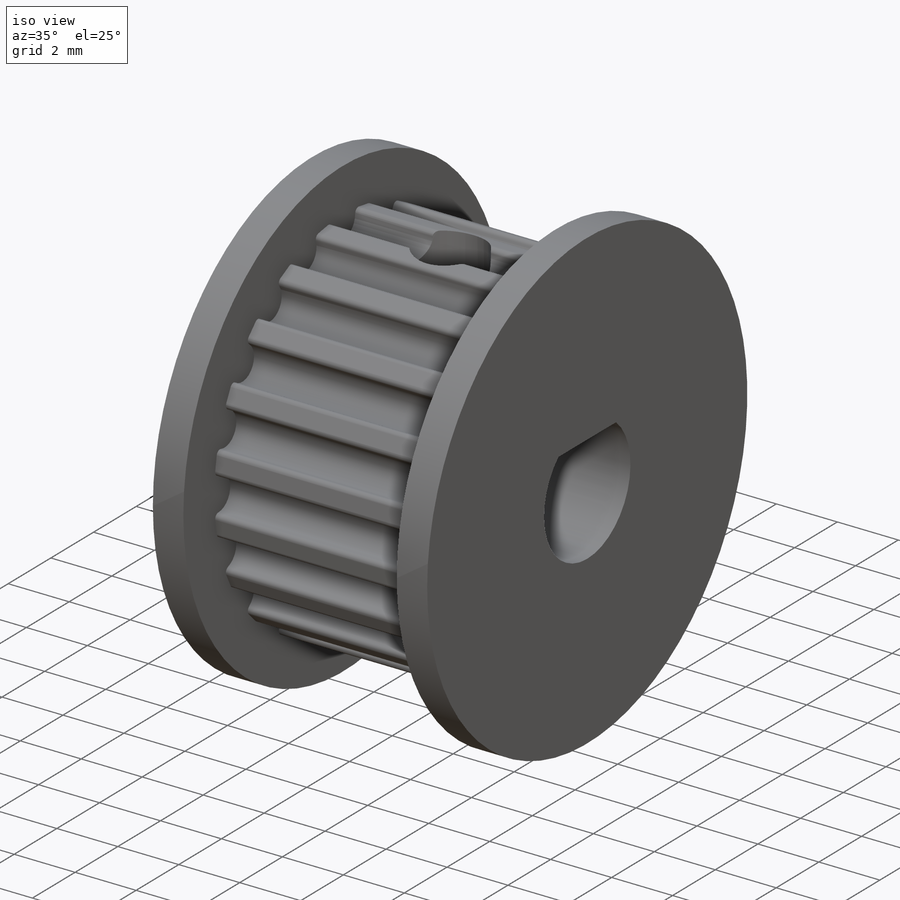
[diagram: iso view]
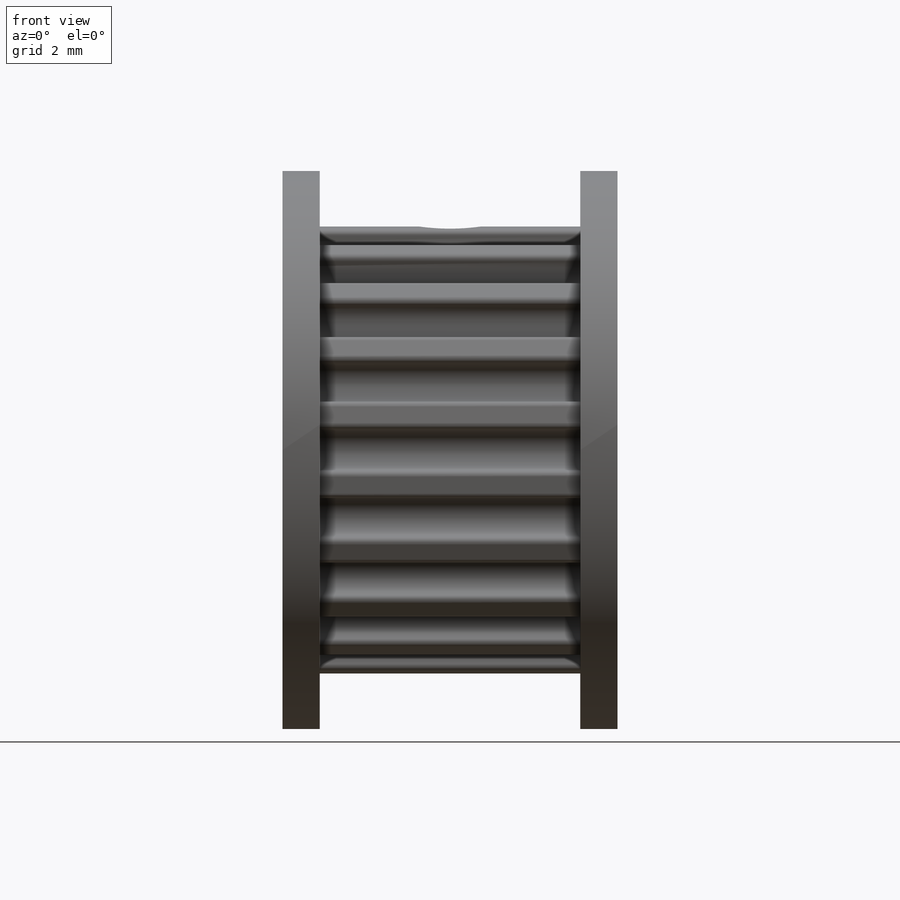
[diagram: front view]
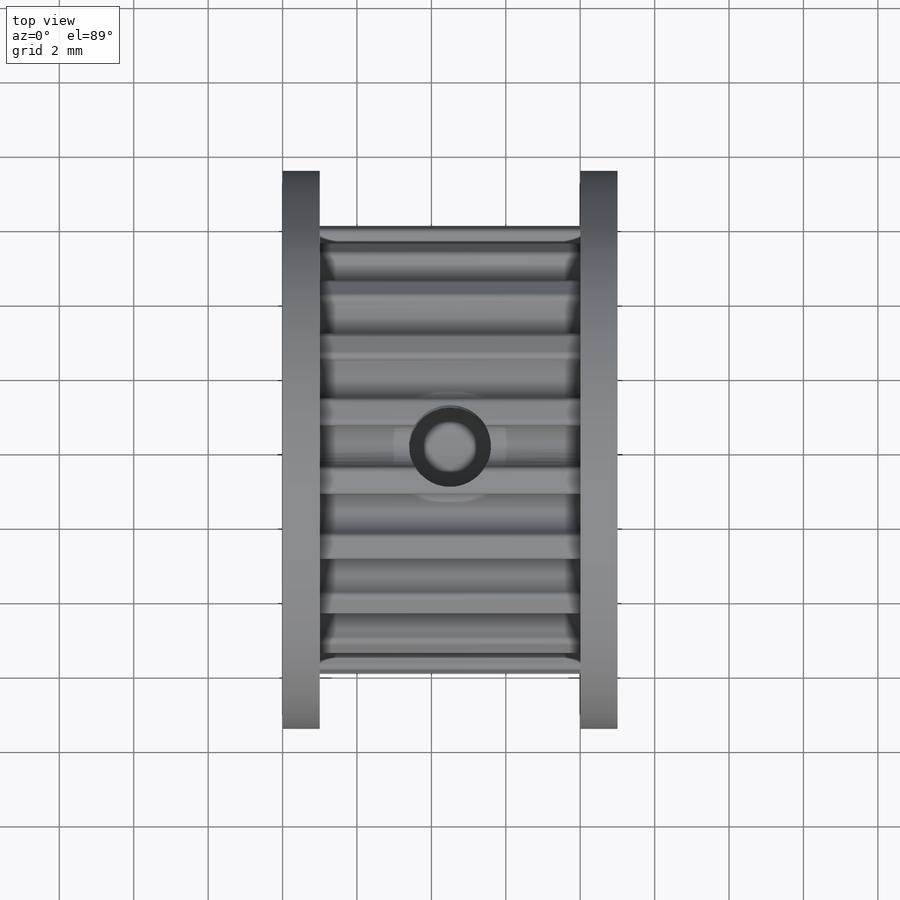
[diagram: top view]
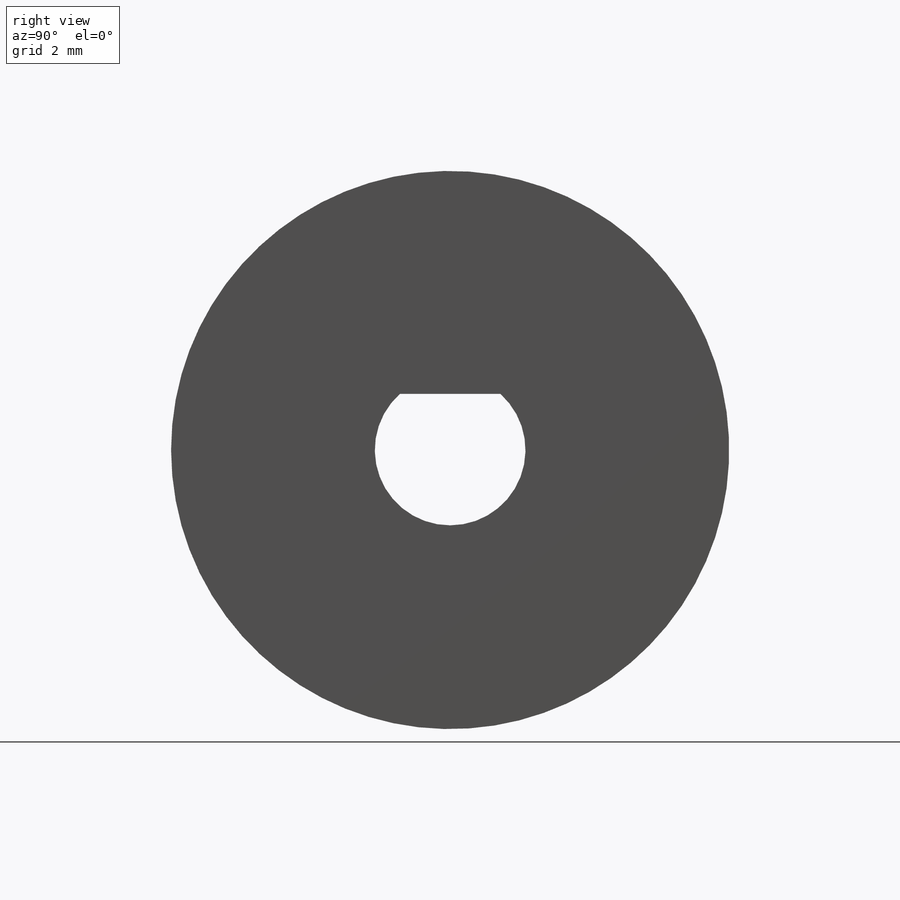
[diagram: right view]
SOLIDWORKS PART (.sldprt)
format: sldprt  version: not decoded by parser v0  size: 473,600 bytes
history: native  units: mm
features: sketch x5, plane x3, cut_extrude x2, material x1, revolve x1, fillet x1, hole x1 (+10 scaffold rows collapsed)
feature tree (24):
  scaffold x10  (default folders/planes/origin — collapsed)
  material  "Alloy Steel"
  plane  "Сверху"
  plane  "Справа"
  plane  "Спереди"
  sketch  "Эскиз1"  dims[c1.D22=0.1mm c1.D1=7.0mm c1.D2=5.5mm c1.D3=7.5mm c1.D4=0.15mm c1.D5=0.5mm c1.D6=1.0mm c1.D7=0.65mm c1.D8=7.0mm c1.D9=7.5mm c1.D10=14.0mm c1.D11=7.5mm c1.D12=1.0mm c1.D13=1.0mm c1.D14=~1.019239mm c2.D13=2.0mm c2.D14=~4.350472mm c2.D15=0.5mm c3.D14=14.0mm c3.D15=1.84mm c3.D17=~0.256133mm c3.D7=6.0mm c3.D8=7.0mm c3.D18=3.5mm c3.D19=~3.501218mm c4.D18=3.5mm c4.D19=0.3mm c4.D20=3.2mm c4.D21=0.3mm c4.D22=~1.390591mm c4.D23=0.1mm c4.D13=4.25mm c4.D6=6.05mm c4.D4=4.25mm c5.D13=~0.615262mm c5.D5=1.0mm c5.D9=5.5mm c5.D2=2.0mm c6.D9=~0.531394mm c6.D5=~1.090799mm c6.D2=1.0mm c6.D1=7.5mm c6.D3=~9.013878mm]
  revolve  "Body"  Angle=360deg
  sketch  "Эскиз3"  dims[c1.D1=~0.914771mm c1.D2=1.0mm c1.D3=1.1mm c2.D1=5.855mm c2.D2=2.0mm c3.D2=20.0]
  cut_extrude  "20tooth"  Depth=7mm
  fillet  "Скругление1"  Radius=0.15mm
  sketch  "Sketch1"  dims[D1=4.05mm D2=2.7mm]
  cut_extrude  "Cut-Extrude1"  [1 undecoded]
  hole  "M2 Clearance Hole1"  Diameter=2.2mm Depth=5.990654mm
  sketch  "Sketch3"
  sketch  "Sketch2"  dims[hole-wizard template sketch: 34 standard entries collapsed; hole parameters kept: c7.D1=25.4mm c7.D2=101.6mm c7.D3=31.75mm c7.D4=~3.666174mm c7.D5=30.48mm c7.D6=~9.919017mm c8.D1=25.4mm c8.D2=101.6mm c8.D3=31.75mm c8.D4=~3.666174mm c8.Thru Hole Dia.=2.2mm c8.Thru Hole Depth=~5.990654mm]
decode coverage: 8 of 10 modeling features carry decoded parameters
note: ~ marks probable driven/reference dimensions
note: 1 parameter value undecoded
note: suppression state not decoded; provenance and decode notes live in map.json
